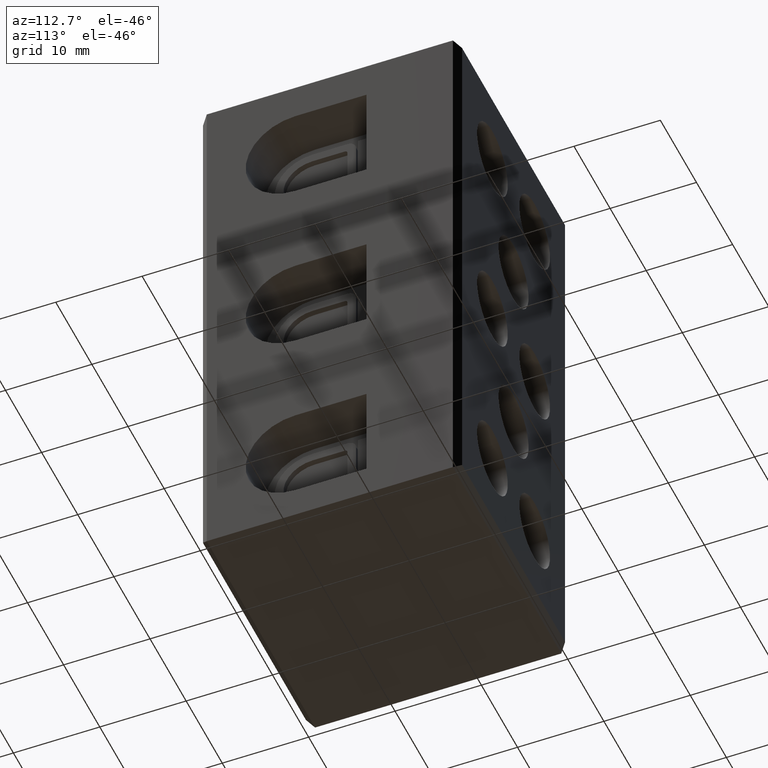
[diagram: clean part render]
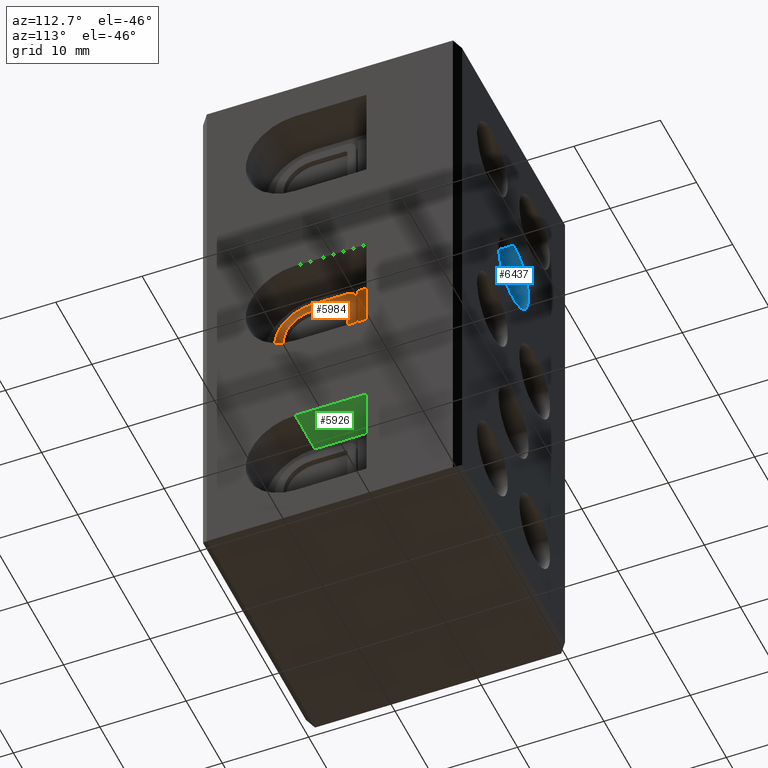
[diagram: same view with three faces highlighted in distinct colors, each labeled with its STEP entity id]
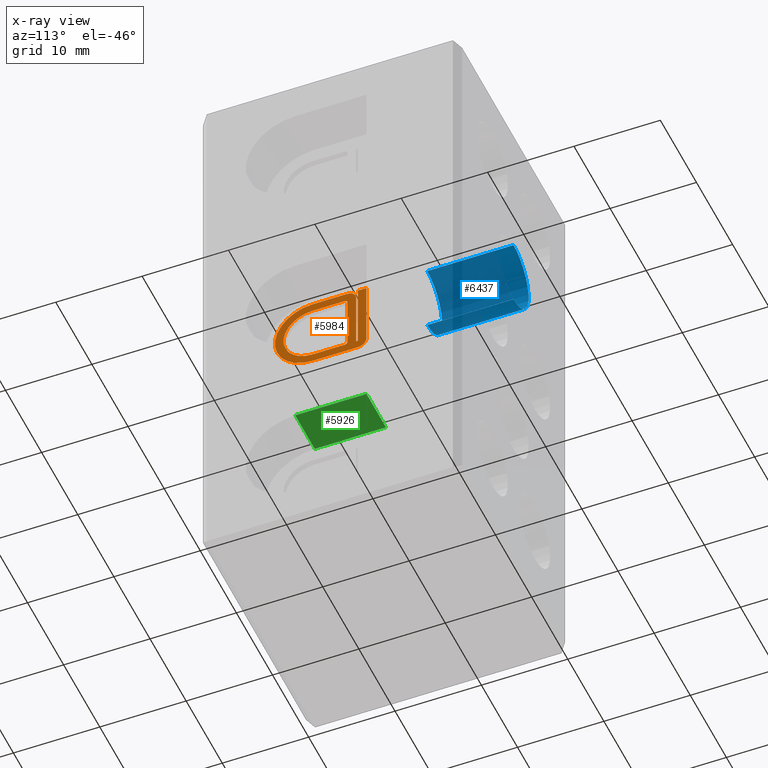
[diagram: x-ray of the same camera — body ghosted, the three highlighted faces saturated]
A machine part, auxiliary view with three faces highlighted in distinct colors.
The next image is the same camera in x-ray (body ghosted, the three faces saturated) — at least one of them is partly hidden behind the body in this view.
Their STEP definitions:

[orange] entity #5984 — the highlighted planar face has unit normal (1, 0, -0).
#485 = DIRECTION ( 'NONE',  ( 1.000000000000000000, 0.0000000000000000000, -1.224646799147353200E-016 ) ) ;
#486 = CARTESIAN_POINT ( 'NONE',  ( 25.25000000000016700, 14.75000000000000200, 35.85000000000000900 ) ) ;
#488 = DIRECTION ( 'NONE',  ( 0.0000000000000000000, 0.0000000000000000000, 1.000000000000000000 ) ) ;
#490 = DIRECTION ( 'NONE',  ( 0.0000000000000000000, -1.000000000000000000, -1.850371707708593600E-015 ) ) ;
#498 = LINE ( 'NONE', #532, #9420 ) ;
#501 = CARTESIAN_POINT ( 'NONE',  ( 25.25000000000016700, 14.75000000000000200, 35.55000000000000400 ) ) ;
#502 = DIRECTION ( 'NONE',  ( 0.0000000000000000000, 0.0000000000000000000, 1.000000000000000000 ) ) ;
#510 = LINE ( 'NONE', #511, #9596 ) ;
#511 = CARTESIAN_POINT ( 'NONE',  ( 25.25000000000016700, 16.25000000000000000, 36.85000000000000900 ) ) ;
#512 = CARTESIAN_POINT ( 'NONE',  ( 25.25000000000016700, 14.75000000000000200, 29.45000000000000600 ) ) ;
#513 = LINE ( 'NONE', #486, #9536 ) ;
#518 = DIRECTION ( 'NONE',  ( 0.0000000000000000000, 0.0000000000000000000, -1.000000000000000000 ) ) ;
#520 = LINE ( 'NONE', #525, #9432 ) ;
#521 = CARTESIAN_POINT ( 'NONE',  ( 25.25000000000016700, 16.25000000000000000, 29.15000000000000600 ) ) ;
#522 = DIRECTION ( 'NONE',  ( 0.0000000000000000000, 0.0000000000000000000, -1.000000000000000000 ) ) ;
#523 = DIRECTION ( 'NONE',  ( 1.000000000000000000, 0.0000000000000000000, -1.224646799147353200E-016 ) ) ;
#524 = DIRECTION ( 'NONE',  ( 0.0000000000000000000, 0.0000000000000000000, -1.000000000000000000 ) ) ;
#525 = CARTESIAN_POINT ( 'NONE',  ( 25.25000000000016700, 15.05000000000000100, 29.45000000000000600 ) ) ;
#526 = DIRECTION ( 'NONE',  ( 0.0000000000000000000, 0.0000000000000000000, -1.000000000000000000 ) ) ;
#531 = DIRECTION ( 'NONE',  ( 1.000000000000000000, 0.0000000000000000000, -1.224646799147353200E-016 ) ) ;
#532 = CARTESIAN_POINT ( 'NONE',  ( 25.25000000000016700, 16.05000000000000100, 29.15000000000000600 ) ) ;
#533 = LINE ( 'NONE', #549, #9577 ) ;
#534 = DIRECTION ( 'NONE',  ( 0.0000000000000000000, -1.000000000000000000, -1.713307136767217800E-015 ) ) ;
#537 = DIRECTION ( 'NONE',  ( 0.0000000000000000000, -1.000000000000000000, 0.0000000000000000000 ) ) ;
#539 = LINE ( 'NONE', #545, #9542 ) ;
#544 = DIRECTION ( 'NONE',  ( 0.0000000000000000000, 1.000000000000000000, 1.850371707708593600E-015 ) ) ;
#545 = CARTESIAN_POINT ( 'NONE',  ( 25.25000000000016700, 11.00000000000000000, 28.14999999999999900 ) ) ;
#548 = CARTESIAN_POINT ( 'NONE',  ( 25.25000000000016700, 16.25000000000000000, 29.15000000000000600 ) ) ;
#549 = CARTESIAN_POINT ( 'NONE',  ( 25.25000000000016700, 15.04999999999999700, 36.85000000000000900 ) ) ;
#554 = CARTESIAN_POINT ( 'NONE',  ( 25.25000000000016700, 11.00000000000000000, 29.14999999999999900 ) ) ;
#555 = LINE ( 'NONE', #548, #9610 ) ;
#562 = DIRECTION ( 'NONE',  ( 0.0000000000000000000, 1.000000000000000000, 1.321694076934709800E-015 ) ) ;
#565 = LINE ( 'NONE', #554, #9527 ) ;
#582 = DIRECTION ( 'NONE',  ( 0.0000000000000000000, -1.000000000000000000, 0.0000000000000000000 ) ) ;
#585 = CARTESIAN_POINT ( 'NONE',  ( 25.25000000000016700, 11.00000000000000000, 32.50000000000000000 ) ) ;
#591 = CARTESIAN_POINT ( 'NONE',  ( 25.25000000000016700, 17.25000000000000000, 36.85000000000000900 ) ) ;
#595 = LINE ( 'NONE', #591, #9503 ) ;
#597 = DIRECTION ( 'NONE',  ( 0.0000000000000000000, 0.0000000000000000000, -1.000000000000000000 ) ) ;
#604 = DIRECTION ( 'NONE',  ( 1.000000000000000000, 0.0000000000000000000, -1.224646799147353200E-016 ) ) ;
#607 = LINE ( 'NONE', #610, #9516 ) ;
#610 = CARTESIAN_POINT ( 'NONE',  ( 25.25000000000016700, 17.25000000000000000, 29.15000000000000600 ) ) ;
#626 = CARTESIAN_POINT ( 'NONE',  ( 25.25000000000016700, 15.05000000000000100, 35.85000000000000900 ) ) ;
#627 = DIRECTION ( 'NONE',  ( 1.000000000000000000, 0.0000000000000000000, -1.224646799147353200E-016 ) ) ;
#633 = DIRECTION ( 'NONE',  ( 0.0000000000000000000, 0.0000000000000000000, -1.000000000000000000 ) ) ;
#634 = CARTESIAN_POINT ( 'NONE',  ( 25.25000000000016700, 11.00000000000000000, 32.50000000000000000 ) ) ;
#637 = DIRECTION ( 'NONE',  ( 1.000000000000000000, 0.0000000000000000000, -1.224646799147353200E-016 ) ) ;
#638 = DIRECTION ( 'NONE',  ( 0.0000000000000000000, 0.0000000000000000000, -1.000000000000000000 ) ) ;
#639 = DIRECTION ( 'NONE',  ( 0.0000000000000000000, 0.0000000000000000000, 1.000000000000000000 ) ) ;
#903 = DIRECTION ( 'NONE',  ( -1.224646799147353200E-016, 0.0000000000000000000, -1.000000000000000000 ) ) ;
#1272 = FACE_OUTER_BOUND ( 'NONE', #8699, .T. ) ;
#1450 = FACE_BOUND ( 'NONE', #8635, .T. ) ;
#1608 = PLANE ( 'NONE',  #2777 ) ;
#1635 = CARTESIAN_POINT ( 'NONE',  ( 25.25000000000016700, 11.00000000000000000, 32.50000000000000000 ) ) ;
#1677 = DIRECTION ( 'NONE',  ( 1.000000000000000000, 0.0000000000000000000, -1.224646799147353200E-016 ) ) ;
#2777 = AXIS2_PLACEMENT_3D ( 'NONE', #1635, #1677, #903 ) ;
#3712 = ORIENTED_EDGE ( 'NONE', *, *, #7676, .T. ) ;
#3715 = ORIENTED_EDGE ( 'NONE', *, *, #7632, .F. ) ;
#3718 = ORIENTED_EDGE ( 'NONE', *, *, #7651, .T. ) ;
#3719 = ORIENTED_EDGE ( 'NONE', *, *, #7630, .T. ) ;
#3721 = ORIENTED_EDGE ( 'NONE', *, *, #7649, .T. ) ;
#3730 = ORIENTED_EDGE ( 'NONE', *, *, #7633, .F. ) ;
#3731 = ORIENTED_EDGE ( 'NONE', *, *, #7658, .T. ) ;
#3744 = ORIENTED_EDGE ( 'NONE', *, *, #7646, .F. ) ;
#3749 = ORIENTED_EDGE ( 'NONE', *, *, #7677, .T. ) ;
#3752 = ORIENTED_EDGE ( 'NONE', *, *, #7631, .T. ) ;
#3760 = ORIENTED_EDGE ( 'NONE', *, *, #7644, .T. ) ;
#3767 = ORIENTED_EDGE ( 'NONE', *, *, #7634, .F. ) ;
#3769 = ORIENTED_EDGE ( 'NONE', *, *, #7656, .T. ) ;
#3798 = ORIENTED_EDGE ( 'NONE', *, *, #7678, .F. ) ;
#3813 = ORIENTED_EDGE ( 'NONE', *, *, #7668, .T. ) ;
#3816 = ORIENTED_EDGE ( 'NONE', *, *, #7639, .F. ) ;
#4611 = VERTEX_POINT ( 'NONE', #9051 ) ;
#4612 = VERTEX_POINT ( 'NONE', #9107 ) ;
#4619 = VERTEX_POINT ( 'NONE', #9066 ) ;
#4620 = VERTEX_POINT ( 'NONE', #9085 ) ;
#4634 = VERTEX_POINT ( 'NONE', #9074 ) ;
#4644 = VERTEX_POINT ( 'NONE', #9111 ) ;
#4656 = VERTEX_POINT ( 'NONE', #9120 ) ;
#4666 = VERTEX_POINT ( 'NONE', #9252 ) ;
#4668 = VERTEX_POINT ( 'NONE', #9203 ) ;
#4669 = VERTEX_POINT ( 'NONE', #9254 ) ;
#4670 = VERTEX_POINT ( 'NONE', #9225 ) ;
#4673 = VERTEX_POINT ( 'NONE', #9256 ) ;
#4678 = VERTEX_POINT ( 'NONE', #9273 ) ;
#4688 = VERTEX_POINT ( 'NONE', #9222 ) ;
#4693 = VERTEX_POINT ( 'NONE', #9186 ) ;
#4696 = VERTEX_POINT ( 'NONE', #9220 ) ;
#5984 = ADVANCED_FACE ( 'NONE', ( #1450, #1272 ), #1608, .T. ) ;
#7630 = EDGE_CURVE ( 'NONE', #4696, #4693, #9438, .T. ) ;
#7631 = EDGE_CURVE ( 'NONE', #4673, #4668, #498, .T. ) ;
#7632 = EDGE_CURVE ( 'NONE', #4620, #4670, #9422, .T. ) ;
#7633 = EDGE_CURVE ( 'NONE', #4619, #4620, #520, .T. ) ;
#7634 = EDGE_CURVE ( 'NONE', #4656, #4619, #9434, .T. ) ;
#7639 = EDGE_CURVE ( 'NONE', #4670, #4644, #513, .T. ) ;
#7644 = EDGE_CURVE ( 'NONE', #4669, #4612, #510, .T. ) ;
#7646 = EDGE_CURVE ( 'NONE', #4634, #4656, #565, .T. ) ;
#7649 = EDGE_CURVE ( 'NONE', #4688, #4696, #539, .T. ) ;
#7651 = EDGE_CURVE ( 'NONE', #4612, #4673, #555, .T. ) ;
#7656 = EDGE_CURVE ( 'NONE', #4611, #4666, #533, .T. ) ;
#7658 = EDGE_CURVE ( 'NONE', #4666, #4688, #9588, .T. ) ;
#7668 = EDGE_CURVE ( 'NONE', #4678, #4669, #595, .T. ) ;
#7676 = EDGE_CURVE ( 'NONE', #4668, #4611, #9564, .T. ) ;
#7677 = EDGE_CURVE ( 'NONE', #4693, #4678, #607, .T. ) ;
#7678 = EDGE_CURVE ( 'NONE', #4644, #4634, #9568, .T. ) ;
#8635 = EDGE_LOOP ( 'NONE', ( #3715, #3730, #3767, #3744, #3798, #3816 ) ) ;
#8699 = EDGE_LOOP ( 'NONE', ( #3731, #3721, #3719, #3749, #3813, #3760, #3718, #3752, #3712, #3769 ) ) ;
#9051 = CARTESIAN_POINT ( 'NONE',  ( 25.25000000000016700, 15.04999999999999700, 36.85000000000000900 ) ) ;
#9066 = CARTESIAN_POINT ( 'NONE',  ( 25.25000000000016700, 15.05000000000000100, 29.45000000000000600 ) ) ;
#9074 = CARTESIAN_POINT ( 'NONE',  ( 25.25000000000016700, 11.00000000000000000, 29.14999999999999900 ) ) ;
#9085 = CARTESIAN_POINT ( 'NONE',  ( 25.25000000000016700, 15.05000000000000100, 35.55000000000000400 ) ) ;
#9107 = CARTESIAN_POINT ( 'NONE',  ( 25.25000000000016700, 16.25000000000000000, 29.15000000000000600 ) ) ;
#9111 = CARTESIAN_POINT ( 'NONE',  ( 25.25000000000016700, 11.00000000000000000, 35.85000000000000100 ) ) ;
#9120 = CARTESIAN_POINT ( 'NONE',  ( 25.25000000000016700, 14.75000000000000200, 29.15000000000000600 ) ) ;
#9186 = CARTESIAN_POINT ( 'NONE',  ( 25.25000000000016700, 17.25000000000000000, 29.15000000000000600 ) ) ;
#9203 = CARTESIAN_POINT ( 'NONE',  ( 25.25000000000016700, 16.05000000000000100, 35.85000000000000900 ) ) ;
#9220 = CARTESIAN_POINT ( 'NONE',  ( 25.25000000000016700, 16.25000000000000000, 28.15000000000000600 ) ) ;
#9222 = CARTESIAN_POINT ( 'NONE',  ( 25.25000000000016700, 11.00000000000000000, 28.14999999999999900 ) ) ;
#9225 = CARTESIAN_POINT ( 'NONE',  ( 25.25000000000016700, 14.75000000000000200, 35.85000000000000900 ) ) ;
#9252 = CARTESIAN_POINT ( 'NONE',  ( 25.25000000000016700, 11.00000000000000000, 36.85000000000000100 ) ) ;
#9254 = CARTESIAN_POINT ( 'NONE',  ( 25.25000000000016700, 16.25000000000000000, 36.85000000000000900 ) ) ;
#9256 = CARTESIAN_POINT ( 'NONE',  ( 25.25000000000016700, 16.05000000000000100, 29.15000000000000600 ) ) ;
#9273 = CARTESIAN_POINT ( 'NONE',  ( 25.25000000000016700, 17.25000000000000000, 36.85000000000000900 ) ) ;
#9420 = VECTOR ( 'NONE', #488, 1000.000000000000000 ) ;
#9422 = CIRCLE ( 'NONE', #9429, 0.3000000000000016500 ) ;
#9426 = AXIS2_PLACEMENT_3D ( 'NONE', #521, #531, #522 ) ;
#9429 = AXIS2_PLACEMENT_3D ( 'NONE', #501, #523, #524 ) ;
#9432 = VECTOR ( 'NONE', #502, 1000.000000000000000 ) ;
#9434 = CIRCLE ( 'NONE', #9523, 0.3000000000000016500 ) ;
#9438 = CIRCLE ( 'NONE', #9426, 1.000000000000000900 ) ;
#9484 = AXIS2_PLACEMENT_3D ( 'NONE', #634, #627, #633 ) ;
#9503 = VECTOR ( 'NONE', #582, 1000.000000000000000 ) ;
#9516 = VECTOR ( 'NONE', #639, 1000.000000000000000 ) ;
#9523 = AXIS2_PLACEMENT_3D ( 'NONE', #512, #485, #526 ) ;
#9527 = VECTOR ( 'NONE', #544, 1000.000000000000000 ) ;
#9536 = VECTOR ( 'NONE', #490, 1000.000000000000000 ) ;
#9540 = AXIS2_PLACEMENT_3D ( 'NONE', #585, #604, #597 ) ;
#9542 = VECTOR ( 'NONE', #562, 1000.000000000000000 ) ;
#9564 = CIRCLE ( 'NONE', #9612, 1.000000000000000900 ) ;
#9568 = CIRCLE ( 'NONE', #9484, 3.349999999999998800 ) ;
#9577 = VECTOR ( 'NONE', #534, 1000.000000000000000 ) ;
#9588 = CIRCLE ( 'NONE', #9540, 4.349999999999999600 ) ;
#9596 = VECTOR ( 'NONE', #518, 1000.000000000000000 ) ;
#9610 = VECTOR ( 'NONE', #537, 1000.000000000000000 ) ;
#9612 = AXIS2_PLACEMENT_3D ( 'NONE', #626, #637, #638 ) ;

[blue] entity #6437 — the highlighted cylindrical surface (partial cylindrical patch) has radius 4.15 mm, axis along (0, 1, 0).
#1927 = LINE ( 'NONE', #1928, #2590 ) ;
#1928 = CARTESIAN_POINT ( 'NONE',  ( 15.00000000000008200, 19.99999999999999600, 48.14999999999999900 ) ) ;
#1931 = DIRECTION ( 'NONE',  ( 0.0000000000000000000, 1.000000000000000000, 0.0000000000000000000 ) ) ;
#1974 = CARTESIAN_POINT ( 'NONE',  ( 15.00000000000008200, 30.00000000000000000, 44.00000000000000000 ) ) ;
#1978 = LINE ( 'NONE', #1984, #2824 ) ;
#1984 = CARTESIAN_POINT ( 'NONE',  ( 15.00000000000008200, 19.99999999999999600, 39.84999999999999400 ) ) ;
#2008 = DIRECTION ( 'NONE',  ( -0.0000000000000000000, -1.000000000000000000, -0.0000000000000000000 ) ) ;
#2010 = DIRECTION ( 'NONE',  ( 0.0000000000000000000, 0.0000000000000000000, 1.000000000000000000 ) ) ;
#2050 = DIRECTION ( 'NONE',  ( 0.0000000000000000000, 1.000000000000000000, 0.0000000000000000000 ) ) ;
#2067 = DIRECTION ( 'NONE',  ( 0.0000000000000000000, 1.000000000000000000, 0.0000000000000000000 ) ) ;
#2083 = CARTESIAN_POINT ( 'NONE',  ( 15.00000000000008200, 19.99999999999999600, 44.00000000000000000 ) ) ;
#2091 = DIRECTION ( 'NONE',  ( 0.0000000000000000000, 0.0000000000000000000, 1.000000000000000000 ) ) ;
#2590 = VECTOR ( 'NONE', #1931, 1000.000000000000000 ) ;
#2814 = CIRCLE ( 'NONE', #2815, 4.150000000000001200 ) ;
#2815 = AXIS2_PLACEMENT_3D ( 'NONE', #1974, #2008, #2010 ) ;
#2824 = VECTOR ( 'NONE', #2050, 1000.000000000000000 ) ;
#2835 = AXIS2_PLACEMENT_3D ( 'NONE', #2083, #2067, #2091 ) ;
#2863 = CIRCLE ( 'NONE', #2835, 4.150000000000001200 ) ;
#4021 = ORIENTED_EDGE ( 'NONE', *, *, #6053, .F. ) ;
#4029 = ORIENTED_EDGE ( 'NONE', *, *, #6077, .F. ) ;
#4045 = ORIENTED_EDGE ( 'NONE', *, *, #6034, .F. ) ;
#4088 = ORIENTED_EDGE ( 'NONE', *, *, #6062, .T. ) ;
#4738 = VERTEX_POINT ( 'NONE', #9325 ) ;
#4799 = VERTEX_POINT ( 'NONE', #9441 ) ;
#4802 = VERTEX_POINT ( 'NONE', #9415 ) ;
#4809 = VERTEX_POINT ( 'NONE', #9433 ) ;
#6034 = EDGE_CURVE ( 'NONE', #4799, #4802, #1927, .T. ) ;
#6053 = EDGE_CURVE ( 'NONE', #4802, #4809, #2814, .T. ) ;
#6062 = EDGE_CURVE ( 'NONE', #4738, #4809, #1978, .T. ) ;
#6077 = EDGE_CURVE ( 'NONE', #4738, #4799, #2863, .T. ) ;
#6437 = ADVANCED_FACE ( 'NONE', ( #7211 ), #7194, .F. ) ;
#7175 = DIRECTION ( 'NONE',  ( 0.0000000000000000000, 0.0000000000000000000, 1.000000000000000000 ) ) ;
#7181 = DIRECTION ( 'NONE',  ( 0.0000000000000000000, 1.000000000000000000, 0.0000000000000000000 ) ) ;
#7191 = CARTESIAN_POINT ( 'NONE',  ( 15.00000000000008200, 19.99999999999999600, 44.00000000000000000 ) ) ;
#7194 = CYLINDRICAL_SURFACE ( 'NONE', #8473, 4.150000000000001200 ) ;
#7211 = FACE_OUTER_BOUND ( 'NONE', #8111, .T. ) ;
#8111 = EDGE_LOOP ( 'NONE', ( #4029, #4088, #4021, #4045 ) ) ;
#8473 = AXIS2_PLACEMENT_3D ( 'NONE', #7191, #7181, #7175 ) ;
#9325 = CARTESIAN_POINT ( 'NONE',  ( 15.00000000000008200, 19.99999999999999600, 39.84999999999999400 ) ) ;
#9415 = CARTESIAN_POINT ( 'NONE',  ( 15.00000000000008200, 30.00000000000000000, 48.14999999999999900 ) ) ;
#9433 = CARTESIAN_POINT ( 'NONE',  ( 15.00000000000008200, 30.00000000000000000, 39.84999999999999400 ) ) ;
#9441 = CARTESIAN_POINT ( 'NONE',  ( 15.00000000000008200, 19.99999999999999600, 48.14999999999999900 ) ) ;

[green] entity #5926 — the highlighted planar face has unit normal (0, -0, 1).
#120 = LINE ( 'NONE', #151, #9228 ) ;
#126 = DIRECTION ( 'NONE',  ( -1.000000000000000000, -0.0000000000000000000, 1.224646799147353200E-016 ) ) ;
#132 = CARTESIAN_POINT ( 'NONE',  ( 74.00000000000001400, 19.24999999999999600, 15.24999999999999100 ) ) ;
#148 = DIRECTION ( 'NONE',  ( -0.0000000000000000000, -1.000000000000000000, 0.0000000000000000000 ) ) ;
#151 = CARTESIAN_POINT ( 'NONE',  ( 30.00000000000000000, 30.00000000000000000, 15.24999999999999600 ) ) ;
#152 = LINE ( 'NONE', #132, #9191 ) ;
#212 = LINE ( 'NONE', #218, #9266 ) ;
#218 = CARTESIAN_POINT ( 'NONE',  ( 24.60000000000017200, 19.24999999999999600, 15.24999999999999600 ) ) ;
#219 = DIRECTION ( 'NONE',  ( -0.0000000000000000000, -1.000000000000000000, -0.0000000000000000000 ) ) ;
#275 = LINE ( 'NONE', #279, #9270 ) ;
#279 = CARTESIAN_POINT ( 'NONE',  ( 74.00000000000001400, 11.00000000000000000, 15.24999999999999300 ) ) ;
#283 = DIRECTION ( 'NONE',  ( -1.000000000000000000, 0.0000000000000000000, 1.224646799147353200E-016 ) ) ;
#1392 = PLANE ( 'NONE',  #2673 ) ;
#1401 = DIRECTION ( 'NONE',  ( 1.224646799147353200E-016, -0.0000000000000000000, 1.000000000000000000 ) ) ;
#1412 = CARTESIAN_POINT ( 'NONE',  ( 74.00000000000001400, 19.24999999999999600, 15.24999999999999100 ) ) ;
#1431 = FACE_OUTER_BOUND ( 'NONE', #8595, .T. ) ;
#1443 = DIRECTION ( 'NONE',  ( 1.000000000000000000, 0.0000000000000000000, -1.224646799147353200E-016 ) ) ;
#2673 = AXIS2_PLACEMENT_3D ( 'NONE', #1412, #1401, #1443 ) ;
#3401 = ORIENTED_EDGE ( 'NONE', *, *, #7512, .F. ) ;
#3425 = ORIENTED_EDGE ( 'NONE', *, *, #7542, .F. ) ;
#3429 = ORIENTED_EDGE ( 'NONE', *, *, #7556, .T. ) ;
#3453 = ORIENTED_EDGE ( 'NONE', *, *, #7518, .T. ) ;
#4560 = VERTEX_POINT ( 'NONE', #8935 ) ;
#4577 = VERTEX_POINT ( 'NONE', #8994 ) ;
#4592 = VERTEX_POINT ( 'NONE', #8967 ) ;
#4613 = VERTEX_POINT ( 'NONE', #9156 ) ;
#5926 = ADVANCED_FACE ( 'NONE', ( #1431 ), #1392, .F. ) ;
#7512 = EDGE_CURVE ( 'NONE', #4592, #4560, #152, .T. ) ;
#7518 = EDGE_CURVE ( 'NONE', #4592, #4577, #120, .T. ) ;
#7542 = EDGE_CURVE ( 'NONE', #4560, #4613, #212, .T. ) ;
#7556 = EDGE_CURVE ( 'NONE', #4577, #4613, #275, .T. ) ;
#8595 = EDGE_LOOP ( 'NONE', ( #3425, #3401, #3453, #3429 ) ) ;
#8935 = CARTESIAN_POINT ( 'NONE',  ( 24.60000000000016800, 19.24999999999999600, 15.24999999999999800 ) ) ;
#8967 = CARTESIAN_POINT ( 'NONE',  ( 30.00000000000000000, 19.24999999999999600, 15.24999999999999500 ) ) ;
#8994 = CARTESIAN_POINT ( 'NONE',  ( 30.00000000000000000, 11.00000000000000000, 15.24999999999999600 ) ) ;
#9156 = CARTESIAN_POINT ( 'NONE',  ( 24.60000000000017200, 11.00000000000000000, 15.24999999999999800 ) ) ;
#9191 = VECTOR ( 'NONE', #126, 1000.000000000000000 ) ;
#9228 = VECTOR ( 'NONE', #148, 1000.000000000000000 ) ;
#9266 = VECTOR ( 'NONE', #219, 1000.000000000000000 ) ;
#9270 = VECTOR ( 'NONE', #283, 1000.000000000000000 ) ;